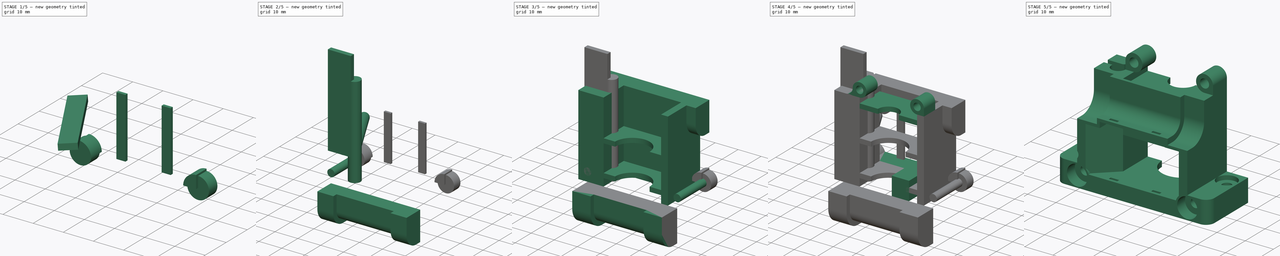
[diagram: build sequence overview — one tinted view per stage of 5, left to right]
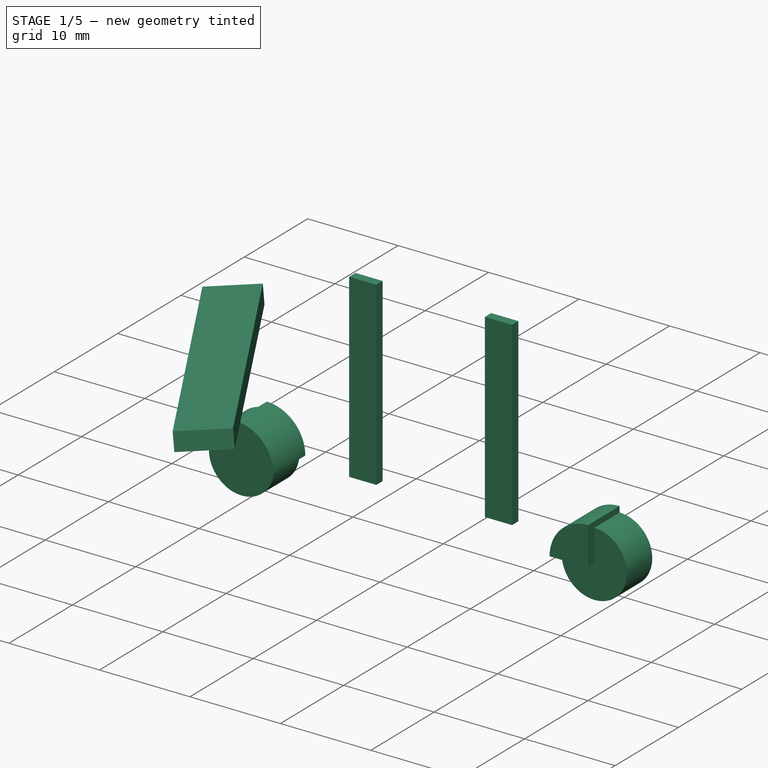
[diagram: stage 1 of 5 — iso view after this stage's code; geometry added in this stage tinted green]
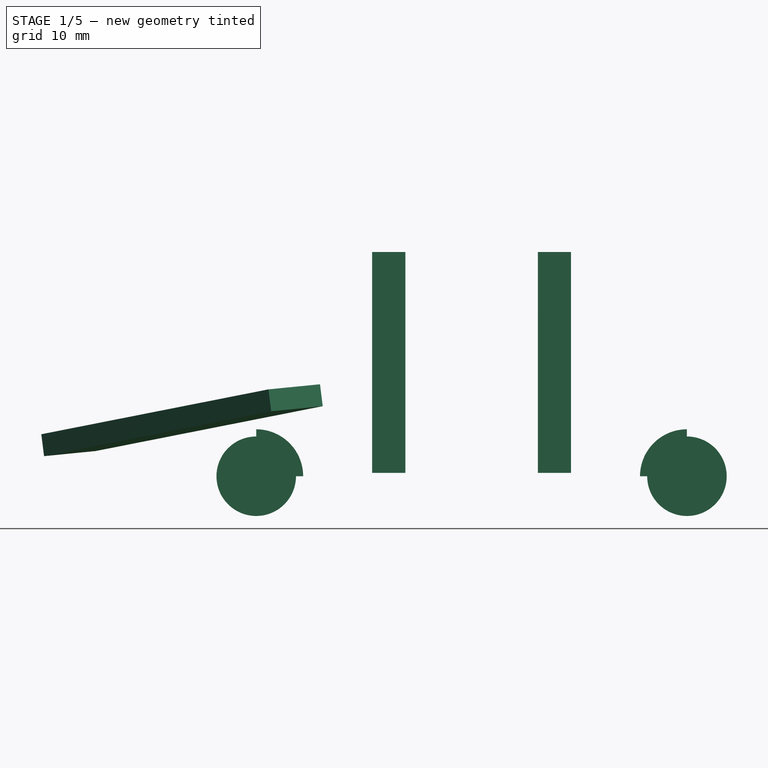
[diagram: stage 1 of 5 — front view after this stage's code; geometry added in this stage tinted green]
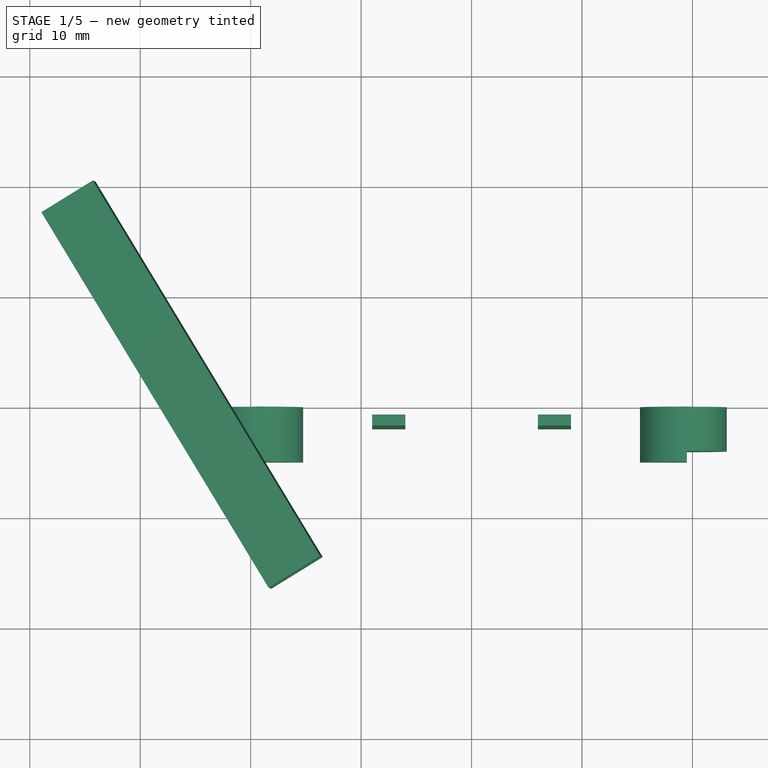
[diagram: stage 1 of 5 — top view after this stage's code; geometry added in this stage tinted green]
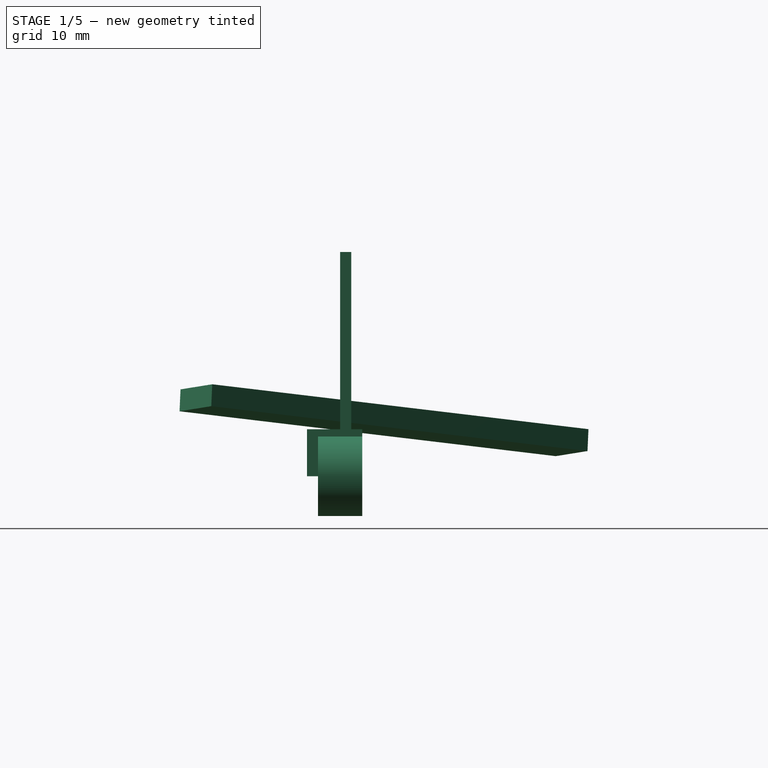
[diagram: stage 1 of 5 — right view after this stage's code; geometry added in this stage tinted green]
FCSTD DOCUMENT  (FreeCAD 0.18R15441 (Git))
Label: HotendClippingLeftHalf_E3DV6_Bowden
License: All rights reserved
LicenseURL: http://en.wikipedia.org/wiki/All_rights_reserved
objects: Sketcher::SketchObject×12, PartDesign::Pad×11, Part::Cylinder×10, PartDesign::Plane×8, Part::Box×5, Part::MultiFuse×4, Part::Cut×3, PartDesign::Body×3, Part::Fillet×2, Part::Mirroring×2, PartDesign::Pocket×1, PartDesign::Fillet×1, Part::FeaturePython×1, App::Part×1
note: 75 computed .brp shape members not serialized (recipe doc carries the construction recipe); baked Part::Feature solids carry a one-line shape summary decoded from their .brp

FEATURE [PartDesign::Body] Body002  label="RodCutBody"
  Group = -> [Sketch012,Pad010,DatumPlane006,DatumPlane007,Sketch011,Sketch013,Pad011,Pad009]
  Origin = -> Origin003
  Placement = pos=(0,20,35) rot=(0,0,1;0rad)
  Tip = -> Pad009
FEATURE [Part::Box] Box001  label="FanWireCutCube"
  AttacherType = Attacher::AttachEngine3D
  Height = 2
  Length = 5.5
  Placement = pos=(-18.1437,3.45834,9.88128) rot=(-0.135537,-0.195279,0.971337;0.562813rad)
  Width = 40
FEATURE [Part::Box] Box003  label="FanShroudClip1"
  AttacherType = Attacher::AttachEngine3D
  Height = 20
  Length = 3
  Placement = pos=(6,18,4.3) rot=(0,0,1;0rad)
  Width = 1
FEATURE [Part::Box] Box004  label="FanShroudClip2"
  AttacherType = Attacher::AttachEngine3D
  Height = 20
  Length = 3
  Placement = pos=(-9,18,4.3) rot=(0,0,1;0rad)
  Width = 1
FEATURE [Part::MultiFuse] Fusion003  label="FanShroudClipFusion"
  Shapes = -> [Box003,Box004]
FEATURE [Part::Cylinder] Cylinder010  label="ScrewTopCutCilinder1"
  Angle = 360
  AttacherType = Attacher::AttachEngine3D
  Height = 4
  Placement = pos=(19.5,16,4) rot=(-1,0,0;1.5708rad)
  Radius = 3.6
FEATURE [Part::Cylinder] Cylinder011  label="ScrewTopCutCilinder2"
  Angle = 360
  AttacherType = Attacher::AttachEngine3D
  Height = 4
  Placement = pos=(-19.5,16,4) rot=(-1,0,0;1.5708rad)
  Radius = 3.6
FEATURE [Part::Cylinder] Cylinder012  label="ScrewTopWallCilinder1"
  Angle = 90
  AttacherType = Attacher::AttachEngine3D
  Height = 5
  Placement = pos=(19.5,15,4) rot=(0,0.707107,0.707107;3.14159rad)
  Radius = 4.25
FEATURE [Part::Cylinder] Cylinder013  label="ScrewTopWallCilinder2"
  Angle = 90
  AttacherType = Attacher::AttachEngine3D
  Height = 5
  Placement = pos=(-19.5,15,4) rot=(0.57735,0.57735,0.57735;4.18879rad)
  Radius = 4.25
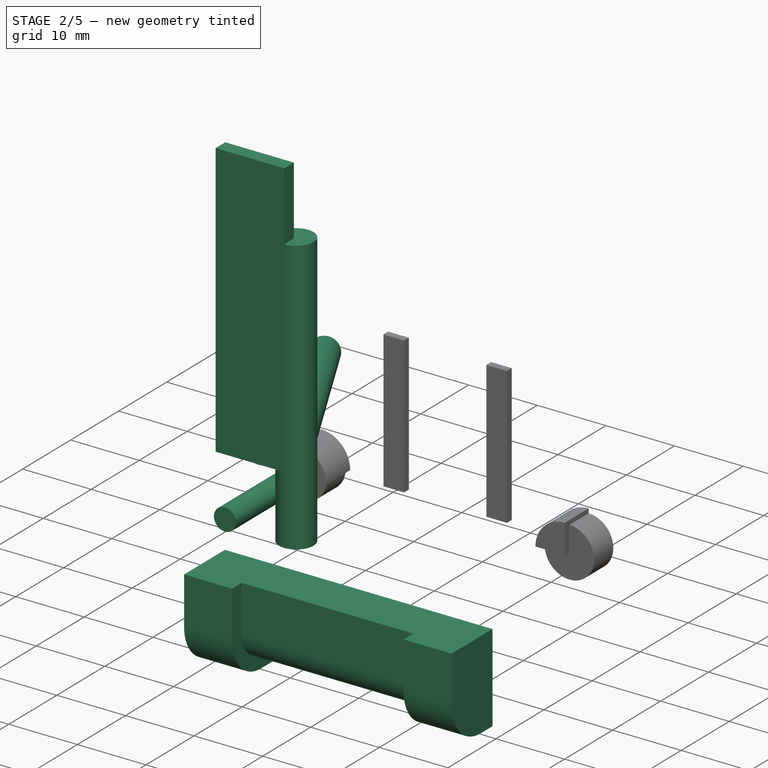
[diagram: stage 2 of 5 — iso view after this stage's code; geometry added in this stage tinted green]
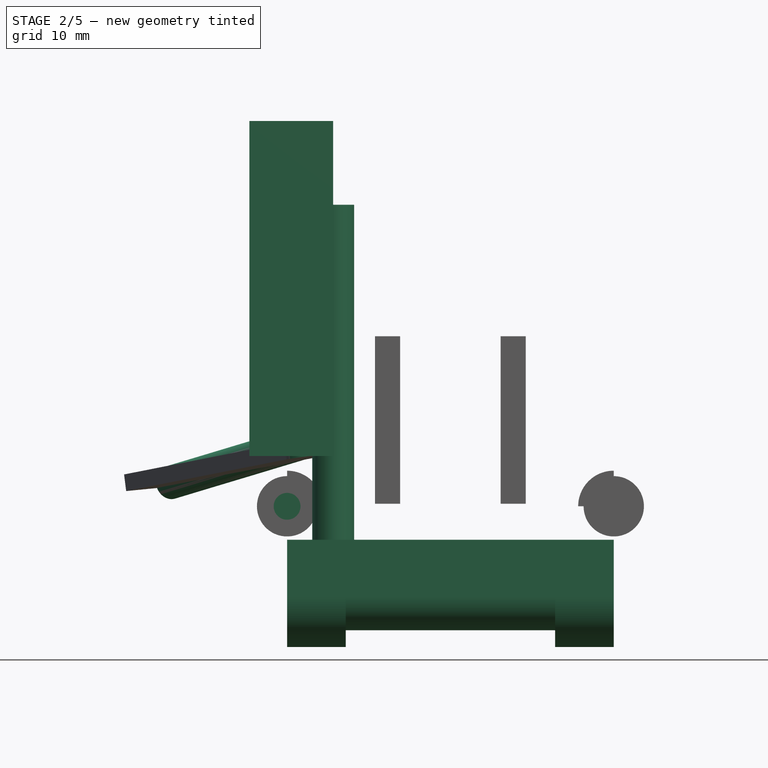
[diagram: stage 2 of 5 — front view after this stage's code; geometry added in this stage tinted green]
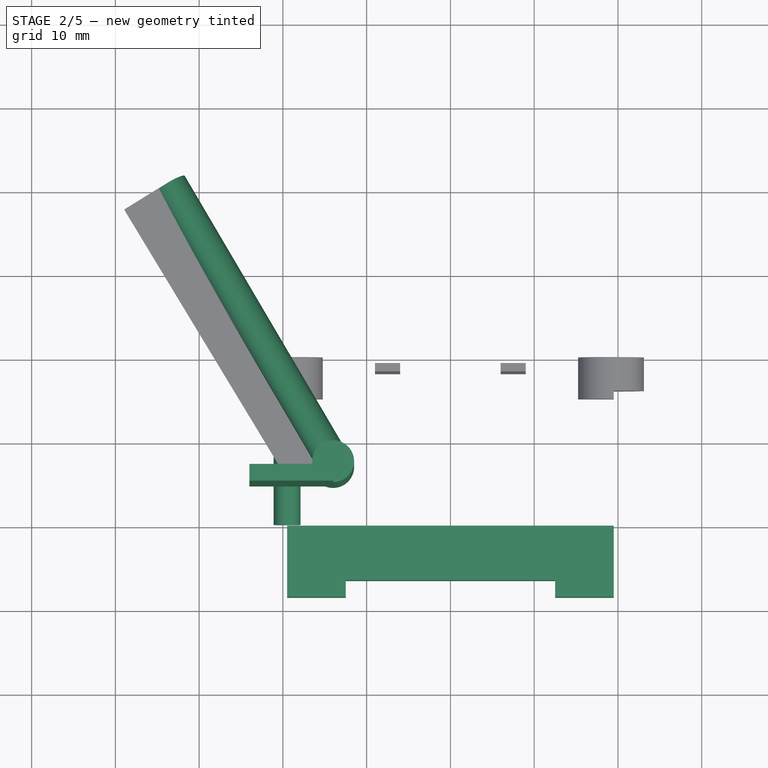
[diagram: stage 2 of 5 — top view after this stage's code; geometry added in this stage tinted green]
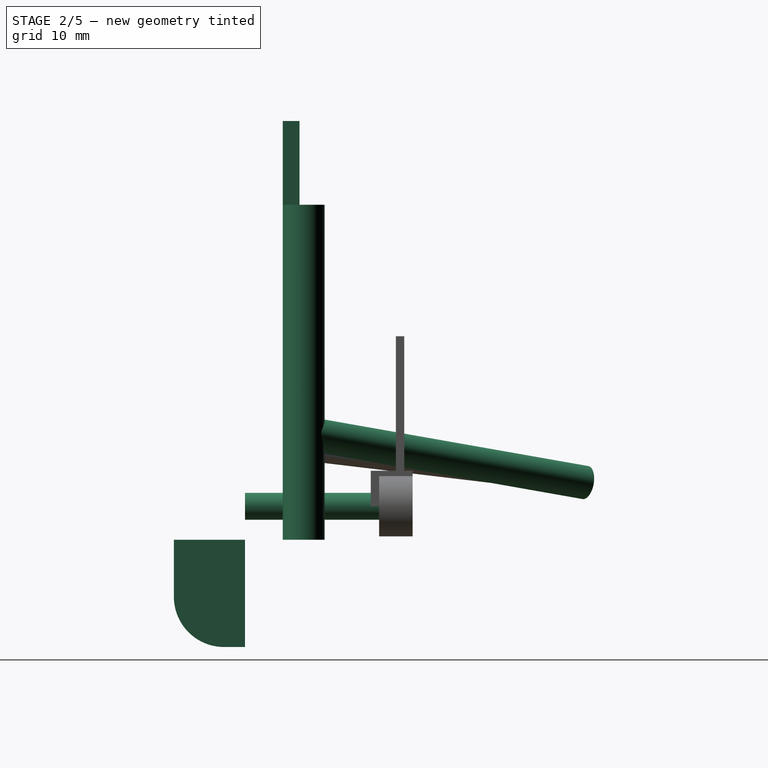
[diagram: stage 2 of 5 — right view after this stage's code; geometry added in this stage tinted green]
FEATURE [Part::Cylinder] Cylinder005  label="ClipCilinder3"
  Angle = 360
  AttacherType = Attacher::AttachEngine3D
  Height = 20
  Placement = pos=(-19.5,4e-15,4) rot=(-1,0,0;1.5708rad)
  Radius = 1.6
FEATURE [Part::Cylinder] Cylinder007  label="ThermistorWireCutCilinder"
  Angle = 360
  AttacherType = Attacher::AttachEngine3D
  Height = 40
  Placement = pos=(-14,7,0) rot=(0,0,1;0rad)
  Radius = 2.5
FEATURE [PartDesign::Body] Body001  label="RodWallBody"
  Group = -> [Sketch008,Pad006,DatumPlane004,DatumPlane005,Sketch009,Sketch010,Pad007,Pad008]
  Origin = -> Origin002
  Placement = pos=(0,20,35) rot=(0,0,1;0rad)
  Tip = -> Pad008
FEATURE [PartDesign::Plane] DatumPlane006  label="RodNutPlane1"
  AttachmentOffset = pos=(0,0,12.5) rot=(0,0,1;0rad)
  Length = 24
  MapMode = 5
  Placement = pos=(12.5,-2.8e-15,2.8e-15) rot=(0.57735,0.57735,0.57735;2.0944rad)
  ResizeMode = 0
  Support = -> [YZ_Plane003]
  Width = 24
FEATURE [Sketcher::SketchObject] Sketch012  label="RodCutSketch"
  MapMode = 5
  Placement = pos=(0,0,0) rot=(0.57735,0.57735,0.57735;2.0944rad)
  Support = -> [YZ_Plane003]
  sketch-geometry (6):
    g0: LineSegment StartX=0 StartY=0 StartZ=0 EndX=-6.5 EndY=0 EndZ=0
    g1: LineSegment StartX=0 StartY=0 StartZ=0 EndX=0 EndY=-10.8 EndZ=0
    g2: LineSegment StartX=-6.5 StartY=0 StartZ=0 EndX=-6.5 EndY=-6.8 EndZ=0
    g3: LineSegment StartX=0 StartY=-10.8 StartZ=0 EndX=-2.5 EndY=-10.8 EndZ=0
    g4: ArcOfCircle CenterX=-2.5 CenterY=-6.8 CenterZ=0 NormalX=0 NormalY=0 NormalZ=1 AngleXU=0 Radius=4 StartAngle=3.14159 EndAngle=4.71239
    g5: LineSegment [constr] StartX=-6.5 StartY=-6.8 StartZ=0 EndX=-2.5 EndY=-6.8 EndZ=0
  constraints (17):
    c: Coincident(g0,g-1)
    c: PointOnObject(g0,g-1)
    c: Coincident(g1,g0)
    c: PointOnObject(g1,g-2)
    c: Coincident(g2,g0)
    c: Vertical(g2)
    c: Coincident(g3,g1)
    c: Horizontal(g3)
    c: Coincident(g4,g2)
    c: Coincident(g4,g3)
    c: Coincident(g5,g2)
    c: Coincident(g5,g4)
    c: Horizontal(g5)
    c: Angle(g4) = 1.5708
    c: Distance(g2) = 6.8
    c: Distance(g0) = 6.5
    c: Distance(g1) = 10.8
FEATURE [Sketcher::SketchObject] Sketch011  label="RodNutCutSketch1"
  ExternalGeometry = -> [Sketch012]
  MapMode = 5
  Placement = pos=(12.5,-2.8e-15,2.8e-15) rot=(0.57735,0.57735,0.57735;2.0944rad)
  Support = -> [DatumPlane006]
  sketch-geometry (6):
    g0: ArcOfCircle CenterX=-2.5 CenterY=-6.8 CenterZ=0 NormalX=0 NormalY=0 NormalZ=1 AngleXU=0 Radius=6 StartAngle=3.14159 EndAngle=4.71239
    g1: LineSegment [constr] StartX=-8.5 StartY=-6.8 StartZ=0 EndX=-2.5 EndY=-6.8 EndZ=0
    g2: LineSegment StartX=-2.5 StartY=-12.8 StartZ=0 EndX=0 EndY=-12.8 EndZ=0
    g3: LineSegment StartX=-8.5 StartY=-6.8 StartZ=0 EndX=-8.5 EndY=0 EndZ=0
    g4: LineSegment StartX=-8.5 StartY=0 StartZ=0 EndX=0 EndY=0 EndZ=0
    g5: LineSegment StartX=0 StartY=0 StartZ=0 EndX=0 EndY=-12.8 EndZ=0
  constraints (16):
    c: Coincident(g0,g-3)
    c: Coincident(g1,g0)
    c: Coincident(g1,g0)
    c: Horizontal(g1)
    c: Angle(g0) = 1.5708
    c: Distance(g0,g-3) = 2
    c: Coincident(g2,g0)
    c: PointOnObject(g2,g-2)
    c: Horizontal(g2)
    c: Coincident(g3,g0)
    c: PointOnObject(g3,g-1)
    c: Vertical(g3)
    c: Coincident(g4,g3)
    c: Coincident(g4,g-1)
    c: Coincident(g5,g4)
    c: Coincident(g5,g2)
FEATURE [PartDesign::Plane] DatumPlane007  label="RodNutPlane2"
  AttachmentOffset = pos=(0,0,-12.5) rot=(0,0,1;0rad)
  Length = 24
  MapMode = 5
  Placement = pos=(-12.5,2.8e-15,-2.8e-15) rot=(0.57735,0.57735,0.57735;2.0944rad)
  ResizeMode = 0
  Support = -> [YZ_Plane003]
  Width = 24
FEATURE [Sketcher::SketchObject] Sketch013  label="RodNutCutSketch2"
  ExternalGeometry = -> [Sketch012]
  MapMode = 5
  Placement = pos=(-12.5,2.8e-15,-2.8e-15) rot=(0.57735,0.57735,0.57735;2.0944rad)
  Support = -> [DatumPlane007]
  sketch-geometry (6):
    g0: ArcOfCircle CenterX=-2.5 CenterY=-6.8 CenterZ=0 NormalX=0 NormalY=0 NormalZ=1 AngleXU=0 Radius=6 StartAngle=3.14159 EndAngle=4.71239
    g1: LineSegment [constr] StartX=-8.5 StartY=-6.8 StartZ=0 EndX=-2.5 EndY=-6.8 EndZ=0
    g2: LineSegment StartX=-2.5 StartY=-12.8 StartZ=0 EndX=0 EndY=-12.8 EndZ=0
    g3: LineSegment StartX=-8.5 StartY=-6.8 StartZ=0 EndX=-8.5 EndY=0 EndZ=0
    g4: LineSegment StartX=-8.5 StartY=0 StartZ=0 EndX=0 EndY=0 EndZ=0
    g5: LineSegment StartX=0 StartY=0 StartZ=0 EndX=0 EndY=-12.8 EndZ=0
  constraints (16):
    c: Coincident(g0,g-3)
    c: Coincident(g1,g0)
    c: Coincident(g1,g0)
    c: Horizontal(g1)
    c: Angle(g0) = 1.5708
    c: Distance(g0,g-3) = 2
    c: Coincident(g2,g0)
    c: PointOnObject(g2,g-2)
    c: Horizontal(g2)
    c: Coincident(g3,g0)
    c: PointOnObject(g3,g-1)
    c: Vertical(g3)
    c: Coincident(g4,g3)
    c: Coincident(g4,g-1)
    c: Coincident(g5,g4)
    c: Coincident(g5,g2)
FEATURE [PartDesign::Pad] Pad010  label="RodCutPad"
  Length = 12.5
  Length2 = 12.5
  Midplane = true
  Placement = pos=(0,0,0) rot=(0.57735,0.57735,0.57735;2.0944rad)
  Profile = -> Sketch012
  Type = 4
FEATURE [PartDesign::Pad] Pad011  label="RodNutCutPad1"
  BaseFeature = -> Pad010
  Length = 7
  Length2 = 100
  Placement = pos=(0,0,0) rot=(0.57735,0.57735,0.57735;2.0944rad)
  Profile = -> Sketch011
  Type = 0
FEATURE [PartDesign::Pad] Pad009  label="RodNutCutPad2"
  BaseFeature = -> Pad011
  Length = 7
  Length2 = 100
  Placement = pos=(0,0,0) rot=(0.57735,0.57735,0.57735;2.0944rad)
  Profile = -> Sketch013
  Reversed = true
  Type = 0
FEATURE [Part::Cylinder] Cylinder009  label="FanWireCutCilinder"
  Angle = 360
  AttacherType = Attacher::AttachEngine3D
  Height = 40
  Placement = pos=(-13.4443,6.51882,12.8506) rot=(0.671543,-0.425,-0.606964;3.74854rad)
  Radius = 2
FEATURE [Part::Box] Box002  label="ThermistorWireCutCube"
  AttacherType = Attacher::AttachEngine3D
  Height = 40
  Length = 10
  Placement = pos=(-24,4.5,10) rot=(0,0,1;0rad)
  Width = 2
FEATURE [Part::Fillet] Fillet002  label="FanWireCutFillet"
  Base = -> Box001
  Edges = 1 edges r=3: [Edge1]
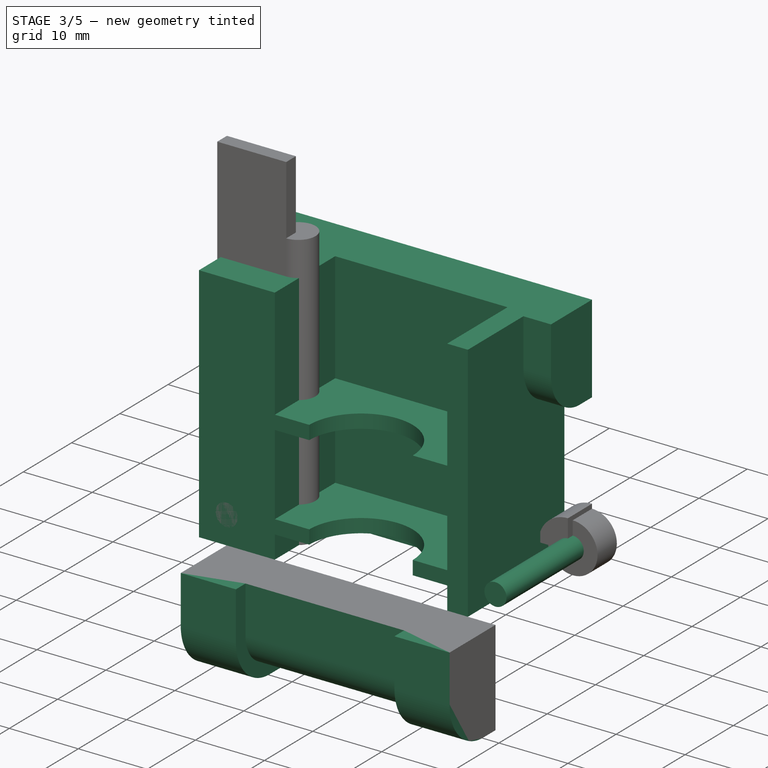
[diagram: stage 3 of 5 — iso view after this stage's code; geometry added in this stage tinted green]
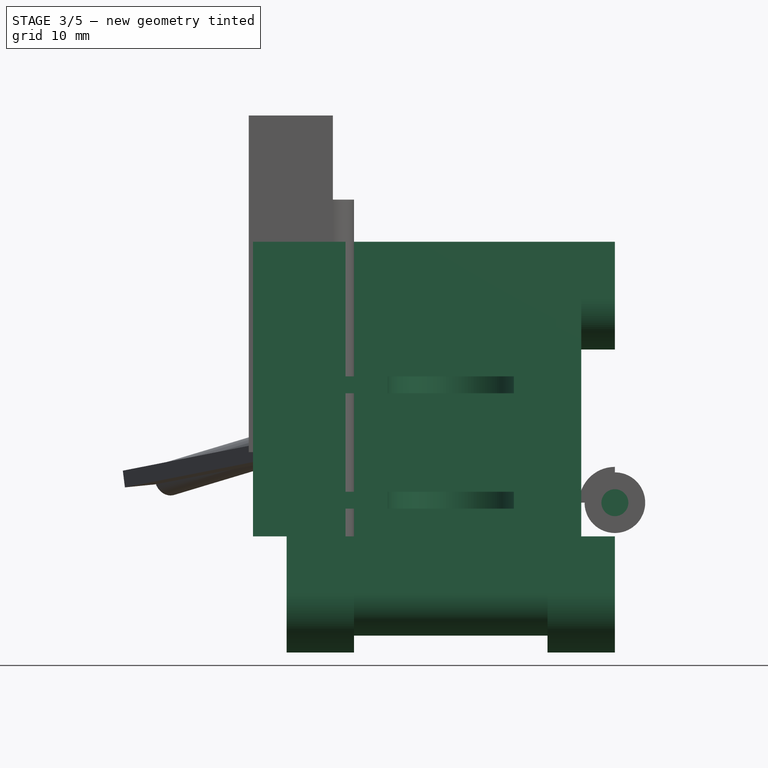
[diagram: stage 3 of 5 — front view after this stage's code; geometry added in this stage tinted green]
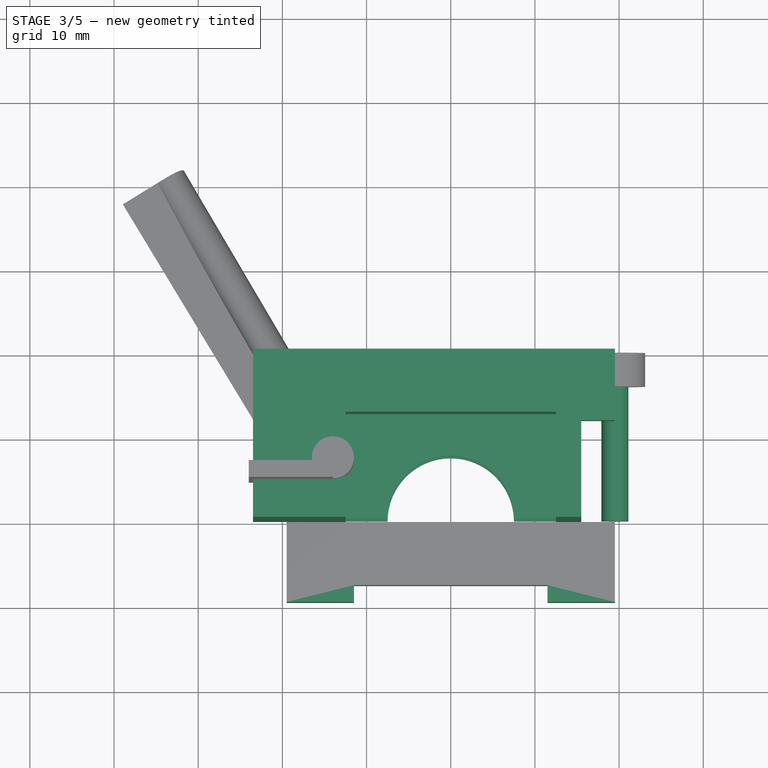
[diagram: stage 3 of 5 — top view after this stage's code; geometry added in this stage tinted green]
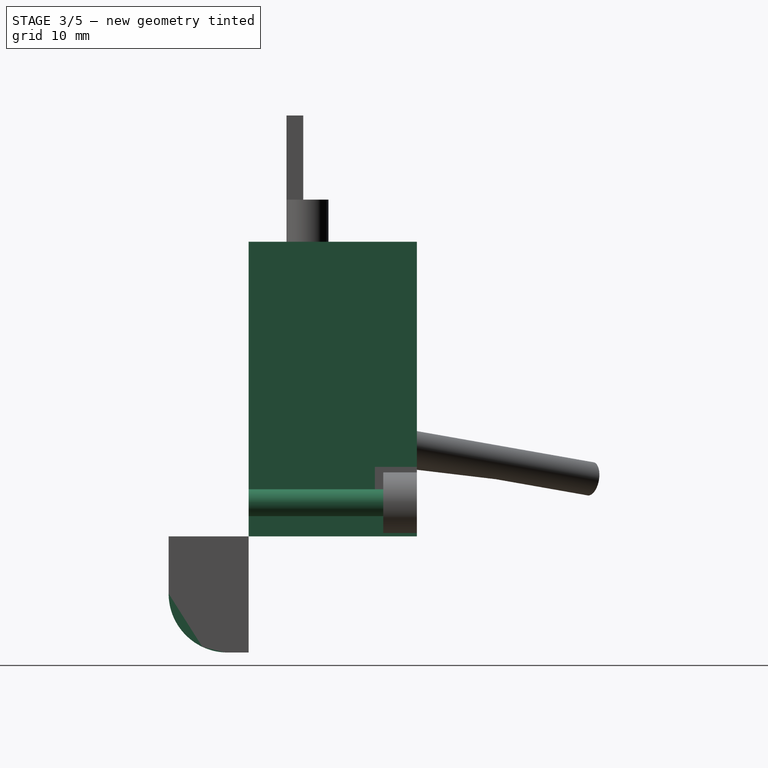
[diagram: stage 3 of 5 — right view after this stage's code; geometry added in this stage tinted green]
FEATURE [Sketcher::SketchObject] Sketch  label="BaseSketch"
  MapMode = 5
  Support = -> [XY_Plane001]
  sketch-geometry (11):
    g0: LineSegment StartX=-12.5 StartY=0 StartZ=0 EndX=-15.5 EndY=0 EndZ=0
    g1: LineSegment StartX=12.5 StartY=0 StartZ=0 EndX=15.5 EndY=0 EndZ=0
    g2: LineSegment [constr] StartX=-15.5 StartY=0 StartZ=0 EndX=-15.5 EndY=20 EndZ=0
    g3: LineSegment StartX=-15.5 StartY=20 StartZ=0 EndX=15.5 EndY=20 EndZ=0
    g4: LineSegment StartX=15.5 StartY=20 StartZ=0 EndX=15.5 EndY=0 EndZ=0
    g5: LineSegment StartX=-12.5 StartY=0 StartZ=0 EndX=-12.5 EndY=12.5 EndZ=0
    g6: LineSegment StartX=-12.5 StartY=12.5 StartZ=0 EndX=12.5 EndY=12.5 EndZ=0
    g7: LineSegment StartX=12.5 StartY=12.5 StartZ=0 EndX=12.5 EndY=0 EndZ=0
    g8: LineSegment StartX=-15.5 StartY=20 StartZ=0 EndX=-23.5 EndY=20 EndZ=0
    g9: LineSegment StartX=-23.5 StartY=20 StartZ=0 EndX=-23.5 EndY=0 EndZ=0
    g10: LineSegment StartX=-23.5 StartY=0 StartZ=0 EndX=-15.5 EndY=0 EndZ=0
  constraints (30):
    c: PointOnObject(g0,g-1)
    c: PointOnObject(g0,g-1)
    c: Coincident(g2,g0)
    c: Vertical(g2)
    c: Coincident(g3,g2)
    c: Horizontal(g3)
    c: Coincident(g4,g3)
    c: Coincident(g4,g1)
    c: Vertical(g4)
    c: Symmetric(g1,g0,g-2)
    c: Distance(g4) = 20
    c: Distance(g3) = 31
    c: Symmetric(g1,g0,g-2)
    c: Coincident(g5,g0)
    c: Vertical(g5)
    c: Coincident(g6,g5)
    c: Horizontal(g6)
    c: Coincident(g7,g6)
    c: Coincident(g7,g1)
    c: Vertical(g7)
    c: Distance(g6) = 25
    c: Distance(g7) = 12.5
    c: Coincident(g8,g2)
    c: Horizontal(g8)
    c: Coincident(g9,g8)
    c: Vertical(g9)
    c: Coincident(g10,g9)
    c: Coincident(g10,g0)
    c: Horizontal(g10)
    c: Distance(g8) = 8
FEATURE [PartDesign::Pad] Pad  label="BasePad"
  Length = 35
  Length2 = 100
  Profile = -> Sketch
  Type = 0
FEATURE [PartDesign::Plane] DatumPlane  label="Clip1Plane"
  AttachmentOffset = pos=(0,0,3.3) rot=(0,0,1;0rad)
  Length = 45.8411
  MapMode = 5
  Placement = pos=(0,0,3.3) rot=(0,0,1;0rad)
  ResizeMode = 0
  Support = -> [XY_Plane001]
  Width = 36.8411
FEATURE [Sketcher::SketchObject] Sketch001  label="Clip1Sketch"
  ExternalGeometry = -> [Sketch]
  MapMode = 5
  Placement = pos=(0,0,3.3) rot=(0,0,1;0rad)
  Support = -> [DatumPlane]
  sketch-geometry (6):
    g0: ArcOfCircle CenterX=0 CenterY=0 CenterZ=0 NormalX=0 NormalY=0 NormalZ=1 AngleXU=0 Radius=7.5 StartAngle=0 EndAngle=3.14159
    g1: LineSegment StartX=-7.5 StartY=0 StartZ=0 EndX=-12.5 EndY=0 EndZ=0
    g2: LineSegment StartX=-12.5 StartY=0 StartZ=0 EndX=-12.5 EndY=12.5 EndZ=0
    g3: LineSegment StartX=-12.5 StartY=12.5 StartZ=0 EndX=12.5 EndY=12.5 EndZ=0
    g4: LineSegment StartX=12.5 StartY=12.5 StartZ=0 EndX=12.5 EndY=0 EndZ=0
    g5: LineSegment StartX=12.5 StartY=0 StartZ=0 EndX=7.5 EndY=0 EndZ=0
  constraints (14):
    c: Radius(g0) = 7.5
    c: Coincident(g0,g-1)
    c: PointOnObject(g0,g-1)
    c: PointOnObject(g0,g-1)
    c: Coincident(g1,g0)
    c: Coincident(g1,g-3)
    c: Coincident(g2,g1)
    c: Coincident(g2,g-4)
    c: Coincident(g3,g2)
    c: Coincident(g3,g-5)
    c: Coincident(g4,g3)
    c: Coincident(g4,g-5)
    c: Coincident(g5,g4)
    c: Coincident(g5,g0)
FEATURE [PartDesign::Pad] Pad001  label="Clip1Pad"
  BaseFeature = -> Pad
  Length = 2
  Length2 = 100
  Profile = -> Sketch001
  Type = 0
FEATURE [PartDesign::Plane] DatumPlane001  label="Clip2Plane"
  AttachmentOffset = pos=(0,0,17) rot=(0,0,1;0rad)
  Length = 45.8411
  MapMode = 5
  Placement = pos=(0,0,17) rot=(0,0,1;0rad)
  ResizeMode = 0
  Support = -> [XY_Plane001]
  Width = 36.8411
FEATURE [Sketcher::SketchObject] Sketch002  label="Clip2Sketch"
  ExternalGeometry = -> [Sketch001]
  MapMode = 5
  Placement = pos=(0,0,17) rot=(0,0,1;0rad)
  Support = -> [DatumPlane001]
  sketch-geometry (6):
    g0: ArcOfCircle CenterX=0 CenterY=0 CenterZ=0 NormalX=0 NormalY=0 NormalZ=1 AngleXU=0 Radius=7.5 StartAngle=-1.0001e-12 EndAngle=3.14159
    g1: LineSegment StartX=-7.5 StartY=-5e-12 StartZ=0 EndX=-12.5 EndY=0 EndZ=0
    g2: LineSegment StartX=-12.5 StartY=0 StartZ=0 EndX=-12.5 EndY=12.5 EndZ=0
    g3: LineSegment StartX=-12.5 StartY=12.5 StartZ=0 EndX=12.5 EndY=12.5 EndZ=0
    g4: LineSegment StartX=12.5 StartY=12.5 StartZ=0 EndX=12.5 EndY=0 EndZ=0
    g5: LineSegment StartX=12.5 StartY=0 StartZ=0 EndX=7.5 EndY=-5e-12 EndZ=0
  constraints (13):
    c: Coincident(g0,g-6)
    c: Coincident(g0,g-6)
    c: Coincident(g0,g-1)
    c: Coincident(g1,g0)
    c: Coincident(g1,g-5)
    c: Coincident(g2,g1)
    c: Coincident(g2,g-5)
    c: Coincident(g3,g2)
    c: Coincident(g3,g-4)
    c: Coincident(g4,g3)
    c: Coincident(g4,g-4)
    c: Coincident(g5,g4)
    c: Coincident(g5,g0)
FEATURE [PartDesign::Pad] Pad002  label="Clip2Pad"
  BaseFeature = -> Pad001
  Length = 2
  Length2 = 100
  Profile = -> Sketch002
  Type = 0
FEATURE [Part::Cylinder] Cylinder003  label="ClipCilinder1"
  Angle = 360
  AttacherType = Attacher::AttachEngine3D
  Height = 20
  Placement = pos=(19.5,4e-15,4) rot=(-1,0,0;1.5708rad)
  Radius = 1.6
FEATURE [PartDesign::Body] Body  label="RadiatorClipBody"
  Group = -> [Sketch,Pad,DatumPlane,Sketch001,Pad001,DatumPlane001,Sketch002,Pad002,DatumPlane002,Sketch003,Pad003,DatumPlane003,Sketch004,Pocket,Sketch007,Pad005,Fillet]
  Origin = -> Origin001
  Placement = pos=(4,0,0) rot=(0,0,1;0rad)
  Tip = -> Fillet
FEATURE [PartDesign::Pad] Pad006  label="RodWallPad"
  Length = 11.5
  Length2 = 11.5
  Midplane = true
  Placement = pos=(0,0,0) rot=(0.57735,0.57735,0.57735;2.0944rad)
  Profile = -> Sketch008
  Type = 4
FEATURE [PartDesign::Plane] DatumPlane004  label="RodNutWallPlane1"
  AttachmentOffset = pos=(0,0,11.5) rot=(0,0,1;0rad)
  Length = 24.3635
  MapMode = 5
  Placement = pos=(11.5,-2.6e-15,2.6e-15) rot=(0.57735,0.57735,0.57735;2.0944rad)
  ResizeMode = 0
  Support = -> [YZ_Plane002]
  Width = 28.1635
FEATURE [PartDesign::Plane] DatumPlane005  label="RodNutWallPlane2"
  AttachmentOffset = pos=(0,0,-11.5) rot=(0,0,1;0rad)
  Length = 24.3635
  MapMode = 5
  Placement = pos=(-11.5,2.6e-15,-2.6e-15) rot=(0.57735,0.57735,0.57735;2.0944rad)
  ResizeMode = 0
  Support = -> [YZ_Plane002]
  Width = 28.1635
FEATURE [Sketcher::SketchObject] Sketch009  label="RodNutWallSketch1"
  ExternalGeometry = -> [Sketch008]
  MapMode = 5
  Placement = pos=(11.5,-2.6e-15,2.6e-15) rot=(0.57735,0.57735,0.57735;2.0944rad)
  Support = -> [DatumPlane004]
  sketch-geometry (6):
    g0: ArcOfCircle CenterX=-2.5 CenterY=-6.8 CenterZ=0 NormalX=0 NormalY=0 NormalZ=1 AngleXU=0 Radius=7 StartAngle=3.14159 EndAngle=4.71239
    g1: LineSegment [constr] StartX=-9.5 StartY=-6.8 StartZ=0 EndX=-2.5 EndY=-6.8 EndZ=0
    g2: LineSegment StartX=-2.5 StartY=-13.8 StartZ=0 EndX=0 EndY=-13.8 EndZ=0
    g3: LineSegment StartX=-9.5 StartY=-6.8 StartZ=0 EndX=-9.5 EndY=0 EndZ=0
    g4: LineSegment StartX=-9.5 StartY=0 StartZ=0 EndX=0 EndY=0 EndZ=0
    g5: LineSegment StartX=0 StartY=0 StartZ=0 EndX=0 EndY=-13.8 EndZ=0
  constraints (16):
    c: Coincident(g0,g-3)
    c: Coincident(g1,g0)
    c: Coincident(g1,g0)
    c: Horizontal(g1)
    c: Angle(g0) = 1.5708
    c: Distance(g0,g-3) = 2
    c: Coincident(g2,g0)
    c: PointOnObject(g2,g-2)
    c: Horizontal(g2)
    c: Coincident(g3,g0)
    c: PointOnObject(g3,g-1)
    c: Vertical(g3)
    c: Coincident(g4,g3)
    c: Coincident(g4,g-1)
    c: Coincident(g5,g4)
    c: Coincident(g5,g2)
FEATURE [Sketcher::SketchObject] Sketch010  label="RodNutWallSketch2"
  ExternalGeometry = -> [Sketch008]
  MapMode = 5
  Placement = pos=(-11.5,2.6e-15,-2.6e-15) rot=(0.57735,0.57735,0.57735;2.0944rad)
  Support = -> [DatumPlane005]
  sketch-geometry (6):
    g0: ArcOfCircle CenterX=-2.5 CenterY=-6.8 CenterZ=0 NormalX=0 NormalY=0 NormalZ=1 AngleXU=0 Radius=7 StartAngle=3.14159 EndAngle=4.71239
    g1: LineSegment [constr] StartX=-9.5 StartY=-6.8 StartZ=0 EndX=-2.5 EndY=-6.8 EndZ=0
    g2: LineSegment StartX=-2.5 StartY=-13.8 StartZ=0 EndX=0 EndY=-13.8 EndZ=0
    g3: LineSegment StartX=-9.5 StartY=-6.8 StartZ=0 EndX=-9.5 EndY=0 EndZ=0
    g4: LineSegment StartX=-9.5 StartY=0 StartZ=0 EndX=0 EndY=0 EndZ=0
    g5: LineSegment StartX=0 StartY=0 StartZ=0 EndX=0 EndY=-13.8 EndZ=0
  constraints (16):
    c: Coincident(g0,g-3)
    c: Coincident(g1,g0)
    c: Coincident(g1,g0)
    c: Horizontal(g1)
    c: Angle(g0) = 1.5708
    c: Distance(g0,g-3) = 2
    c: Coincident(g2,g0)
    c: PointOnObject(g2,g-2)
    c: Horizontal(g2)
    c: Coincident(g3,g0)
    c: PointOnObject(g3,g-1)
    c: Vertical(g3)
    c: Coincident(g4,g3)
    c: Coincident(g4,g-1)
    c: Coincident(g5,g4)
    c: Coincident(g5,g2)
FEATURE [PartDesign::Pad] Pad007  label="RodNutWallPad1"
  BaseFeature = -> Pad006
  Length = 8
  Length2 = 100
  Placement = pos=(0,0,0) rot=(0.57735,0.57735,0.57735;2.0944rad)
  Profile = -> Sketch009
  Type = 0
FEATURE [PartDesign::Pad] Pad008  label="RodNutWallPad2"
  BaseFeature = -> Pad007
  Length = 8
  Length2 = 100
  Placement = pos=(0,0,0) rot=(0.57735,0.57735,0.57735;2.0944rad)
  Profile = -> Sketch010
  Reversed = true
  Type = 0
FEATURE [Part::MultiFuse] Fusion002  label="CaseCutsFusion1"
  Shapes = -> [Cylinder003,Cylinder005,Cylinder007,Body002,Cylinder009,Box002,Fillet002,Cylinder010,Cylinder011]
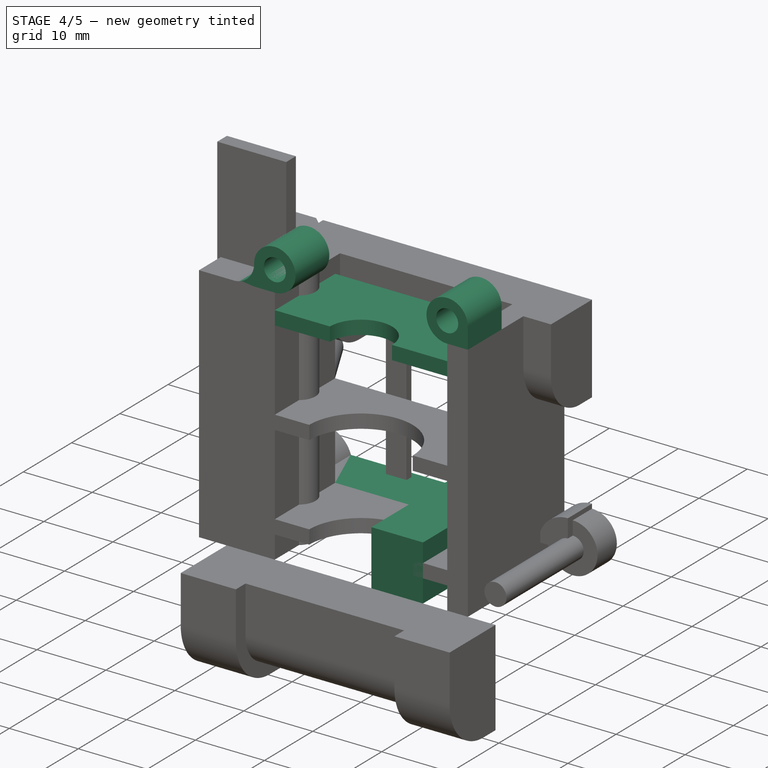
[diagram: stage 4 of 5 — iso view after this stage's code; geometry added in this stage tinted green]
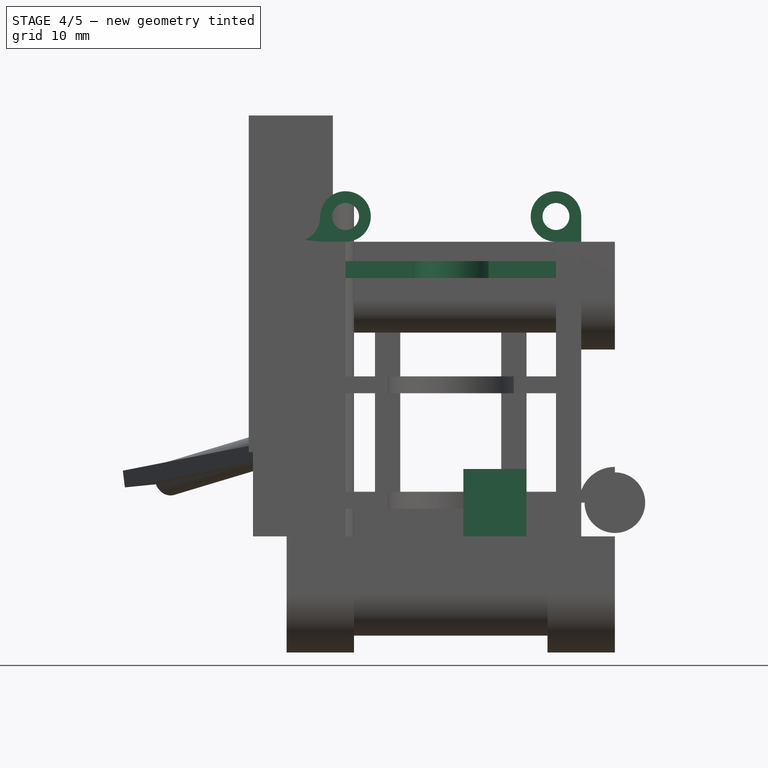
[diagram: stage 4 of 5 — front view after this stage's code; geometry added in this stage tinted green]
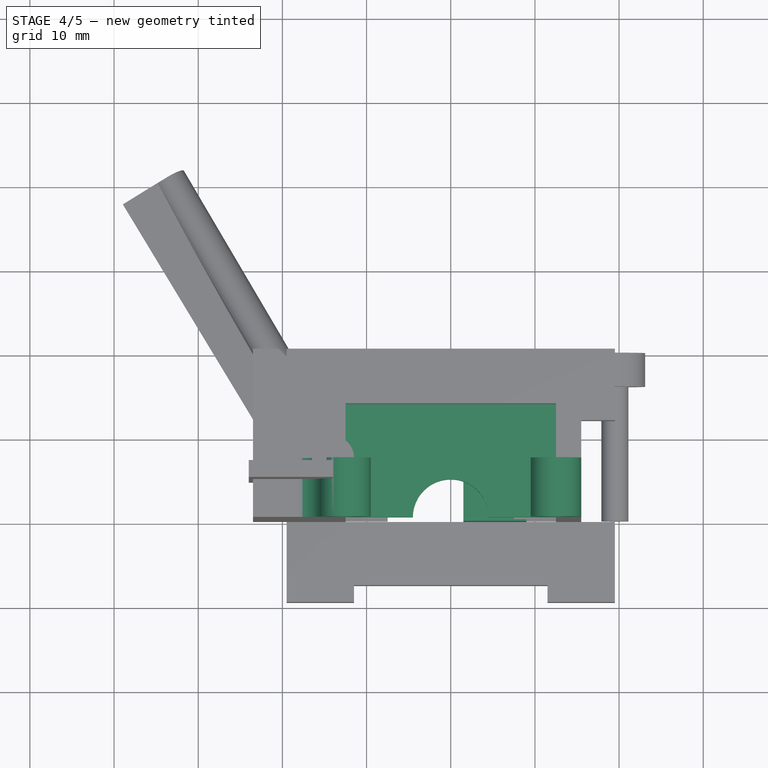
[diagram: stage 4 of 5 — top view after this stage's code; geometry added in this stage tinted green]
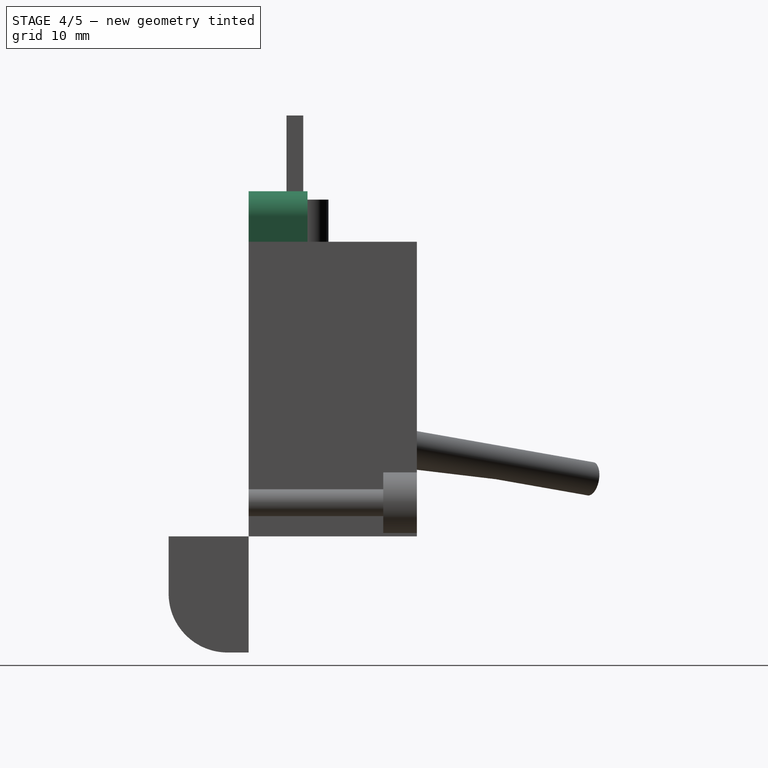
[diagram: stage 4 of 5 — right view after this stage's code; geometry added in this stage tinted green]
FEATURE [PartDesign::Plane] DatumPlane002  label="Clip3Plane"
  AttachmentOffset = pos=(0,0,30.7) rot=(0,0,1;0rad)
  Length = 45.8411
  MapMode = 5
  Placement = pos=(0,0,30.7) rot=(0,0,1;0rad)
  ResizeMode = 0
  Support = -> [XY_Plane001]
  Width = 36.8411
FEATURE [Sketcher::SketchObject] Sketch003  label="Clip3Sketch"
  ExternalGeometry = -> [Sketch001]
  MapMode = 5
  Placement = pos=(0,0,30.7) rot=(0,0,1;0rad)
  Support = -> [DatumPlane002]
  sketch-geometry (6):
    g0: ArcOfCircle CenterX=0 CenterY=0 CenterZ=0 NormalX=0 NormalY=0 NormalZ=1 AngleXU=0 Radius=4.5 StartAngle=0 EndAngle=3.14159
    g1: LineSegment StartX=-4.5 StartY=0 StartZ=0 EndX=-12.5 EndY=0 EndZ=0
    g2: LineSegment StartX=-12.5 StartY=0 StartZ=0 EndX=-12.5 EndY=12.5 EndZ=0
    g3: LineSegment StartX=-12.5 StartY=12.5 StartZ=0 EndX=12.5 EndY=12.5 EndZ=0
    g4: LineSegment StartX=12.5 StartY=12.5 StartZ=0 EndX=12.5 EndY=0 EndZ=0
    g5: LineSegment StartX=12.5 StartY=0 StartZ=0 EndX=4.5 EndY=0 EndZ=0
  constraints (14):
    c: Radius(g0) = 4.5
    c: Coincident(g0,g-1)
    c: PointOnObject(g0,g-1)
    c: PointOnObject(g0,g-1)
    c: Coincident(g1,g0)
    c: Coincident(g1,g-3)
    c: Coincident(g2,g1)
    c: Coincident(g2,g-4)
    c: Coincident(g3,g2)
    c: Coincident(g3,g-5)
    c: Coincident(g4,g3)
    c: Coincident(g4,g-5)
    c: Coincident(g5,g4)
    c: Coincident(g5,g0)
FEATURE [PartDesign::Pad] Pad003  label="Clip3Pad"
  BaseFeature = -> Pad002
  Length = 2
  Length2 = 100
  Profile = -> Sketch003
  Type = 0
FEATURE [PartDesign::Plane] DatumPlane003  label="CutPlane"
  AttachmentOffset = pos=(0,0,5.3) rot=(0,0,1;0rad)
  Length = 45.8411
  MapMode = 5
  Placement = pos=(0,0,5.3) rot=(0,0,1;0rad)
  ResizeMode = 0
  Support = -> [XY_Plane001]
  Width = 36.8411
FEATURE [Part::Box] Box  label="ClipCube"
  AttacherType = Attacher::AttachEngine3D
  Height = 8
  Length = 7.5
  Placement = pos=(1.5,0,0) rot=(0,0,1;0rad)
  Width = 20
FEATURE [Part::Cylinder] Cylinder  label="ClipCilinder"
  Angle = 360
  AttacherType = Attacher::AttachEngine3D
  Height = 8
  Placement = pos=(5,5,0) rot=(0,0,1;0rad)
  Radius = 1.6
FEATURE [Sketcher::SketchObject] Sketch004  label="CutSketch"
  ExternalGeometry = -> [Sketch]
  MapMode = 5
  Placement = pos=(0,0,5.3) rot=(0,0,1;0rad)
  Support = -> [DatumPlane003]
  sketch-geometry (6):
    g0: LineSegment StartX=12.5 StartY=12.5 StartZ=0 EndX=12.5 EndY=20 EndZ=0
    g1: LineSegment StartX=12.5 StartY=20 StartZ=0 EndX=-20.5 EndY=20 EndZ=0
    g2: LineSegment [constr] StartX=-20.5 StartY=20 StartZ=0 EndX=-23.5 EndY=20 EndZ=0
    g3: LineSegment [constr] StartX=12.5 StartY=20 StartZ=0 EndX=15.5 EndY=20 EndZ=0
    g4: LineSegment StartX=12.5 StartY=12.5 StartZ=0 EndX=-12.5 EndY=12.5 EndZ=0
    g5: LineSegment StartX=-12.5 StartY=12.5 StartZ=0 EndX=-20.5 EndY=20 EndZ=0
  constraints (14):
    c: Coincident(g0,g-3)
    c: PointOnObject(g0,g-4)
    c: Vertical(g0)
    c: Coincident(g1,g0)
    c: PointOnObject(g1,g-5)
    c: Coincident(g2,g1)
    c: Coincident(g3,g0)
    c: Coincident(g3,g-4)
    c: Coincident(g2,g-5)
    c: Equal(g2,g3)
    c: Coincident(g4,g0)
    c: Coincident(g4,g-3)
    c: Coincident(g5,g4)
    c: Coincident(g5,g1)
FEATURE [PartDesign::Pocket] Pocket  label="CutPocket"
  BaseFeature = -> Pad003
  Length = 5
  Length2 = 100
  Profile = -> Sketch004
  Reversed = true
  Type = 1
FEATURE [Sketcher::SketchObject] Sketch007  label="StructuralClipSketch"
  MapMode = 5
  Placement = pos=(0,0,0) rot=(1,0,0;1.5708rad)
  Support = -> [XZ_Plane]
  sketch-geometry (10):
    g0: LineSegment StartX=-15.5 StartY=41 StartZ=0 EndX=-9.5 EndY=41 EndZ=0
    g1: LineSegment StartX=-9.5 StartY=41 StartZ=0 EndX=-9.5 EndY=35 EndZ=0
    g2: LineSegment StartX=-9.5 StartY=35 StartZ=0 EndX=-15.5 EndY=35 EndZ=0
    g3: LineSegment StartX=-15.5 StartY=35 StartZ=0 EndX=-15.5 EndY=41 EndZ=0
    g4: LineSegment StartX=15.5 StartY=41 StartZ=0 EndX=9.5 EndY=41 EndZ=0
    g5: LineSegment StartX=9.5 StartY=41 StartZ=0 EndX=9.5 EndY=35 EndZ=0
    g6: LineSegment StartX=9.5 StartY=35 StartZ=0 EndX=15.5 EndY=35 EndZ=0
    g7: LineSegment StartX=15.5 StartY=35 StartZ=0 EndX=15.5 EndY=41 EndZ=0
    g8: Circle CenterX=12.5 CenterY=38 CenterZ=0 NormalX=0 NormalY=0 NormalZ=1 AngleXU=0 Radius=1.6
    g9: Circle CenterX=-12.5 CenterY=38 CenterZ=0 NormalX=0 NormalY=0 NormalZ=1 AngleXU=0 Radius=1.6
  constraints (28):
    c: Coincident(g0,g1)
    c: Coincident(g1,g2)
    c: Coincident(g2,g3)
    c: Coincident(g3,g0)
    c: Horizontal(g0)
    c: Horizontal(g2)
    c: Vertical(g1)
    c: Vertical(g3)
    c: Coincident(g4,g5)
    c: Coincident(g5,g6)
    c: Coincident(g6,g7)
    c: Coincident(g7,g4)
    c: Horizontal(g4)
    c: Horizontal(g6)
    c: Vertical(g5)
    c: Vertical(g7)
    c: Symmetric(g1,g5,g-2)
    c: Equal(g2,g6)
    c: Equal(g1,g5)
    c: DistanceY(g-1,g1) = 35
    c: DistanceX(g-2,g5) = 9.5
    c: Distance(g4) = 6
    c: Symmetric(g8,g9,g-2)
    c: Equal(g8,g9)
    c: Radius(g9) = 1.6
    c: Distance(g3) = 6
    c: Distance(g9,g2) = 3
    c: Distance(g9,g3) = 3
FEATURE [PartDesign::Pad] Pad005  label="StructuralClipPad"
  BaseFeature = -> Pocket
  Length = 7
  Length2 = 100
  Profile = -> Sketch007
  Reversed = true
  Type = 0
FEATURE [Part::Cylinder] Cylinder008  label="ScrewTopCilinder"
  Angle = 360
  AttacherType = Attacher::AttachEngine3D
  Height = 1.5
  Placement = pos=(5,5,6.5) rot=(0,0,1;0rad)
  Radius = 3.5
FEATURE [Part::MultiFuse] Fusion  label="ClipCilindersFusion"
  Shapes = -> [Cylinder,Cylinder008]
FEATURE [Sketcher::SketchObject] Sketch008  label="RodWallSketch"
  MapMode = 5
  Placement = pos=(0,0,0) rot=(0.57735,0.57735,0.57735;2.0944rad)
  Support = -> [YZ_Plane002]
  sketch-geometry (6):
    g0: LineSegment StartX=0 StartY=0 StartZ=0 EndX=-7.5 EndY=0 EndZ=0
    g1: LineSegment StartX=0 StartY=0 StartZ=0 EndX=0 EndY=-11.8 EndZ=0
    g2: LineSegment StartX=-7.5 StartY=0 StartZ=0 EndX=-7.5 EndY=-6.8 EndZ=0
    g3: LineSegment StartX=0 StartY=-11.8 StartZ=0 EndX=-2.5 EndY=-11.8 EndZ=0
    g4: ArcOfCircle CenterX=-2.5 CenterY=-6.8 CenterZ=0 NormalX=0 NormalY=0 NormalZ=1 AngleXU=0 Radius=5 StartAngle=3.14159 EndAngle=4.71239
    g5: LineSegment [constr] StartX=-7.5 StartY=-6.8 StartZ=0 EndX=-2.5 EndY=-6.8 EndZ=0
  constraints (17):
    c: Coincident(g0,g-1)
    c: PointOnObject(g0,g-1)
    c: Coincident(g1,g0)
    c: PointOnObject(g1,g-2)
    c: Coincident(g2,g0)
    c: Vertical(g2)
    c: Coincident(g3,g1)
    c: Horizontal(g3)
    c: Coincident(g4,g2)
    c: Coincident(g4,g3)
    c: Coincident(g5,g2)
    c: Coincident(g5,g4)
    c: Horizontal(g5)
    c: Angle(g4) = 1.5708
    c: Distance(g2) = 6.8
    c: Distance(g0) = 7.5
    c: Distance(g1) = 11.8
FEATURE [PartDesign::Fillet] Fillet  label="StructuralClipFillet"
  Base = -> Pad005 [Edge93,Edge133,Edge134,Edge121,Edge123,Edge122,Edge78]
  BaseFeature = -> Pad005
  Radius = 2.99
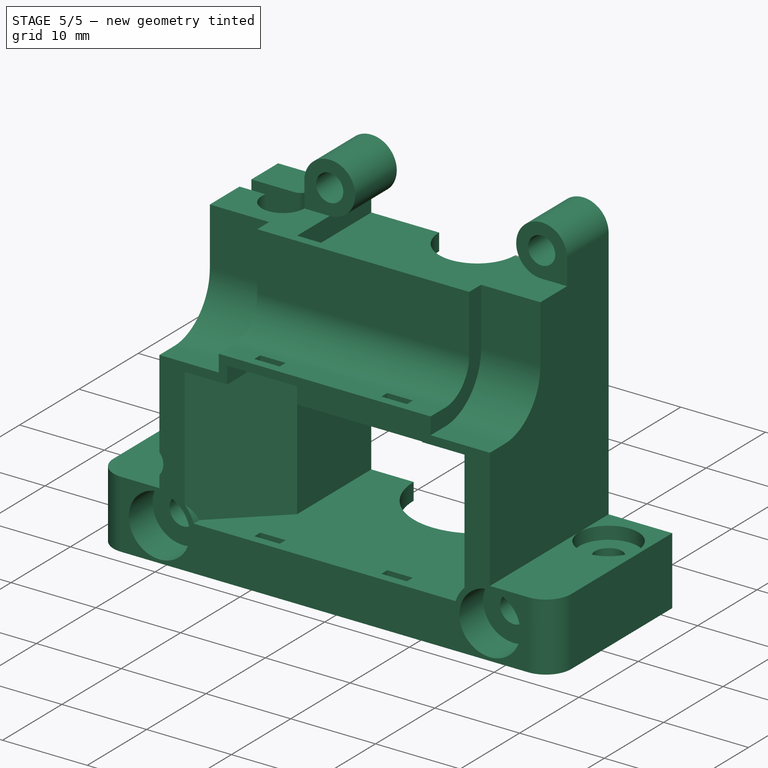
[diagram: stage 5 of 5 — iso view after this stage's code; geometry added in this stage tinted green]
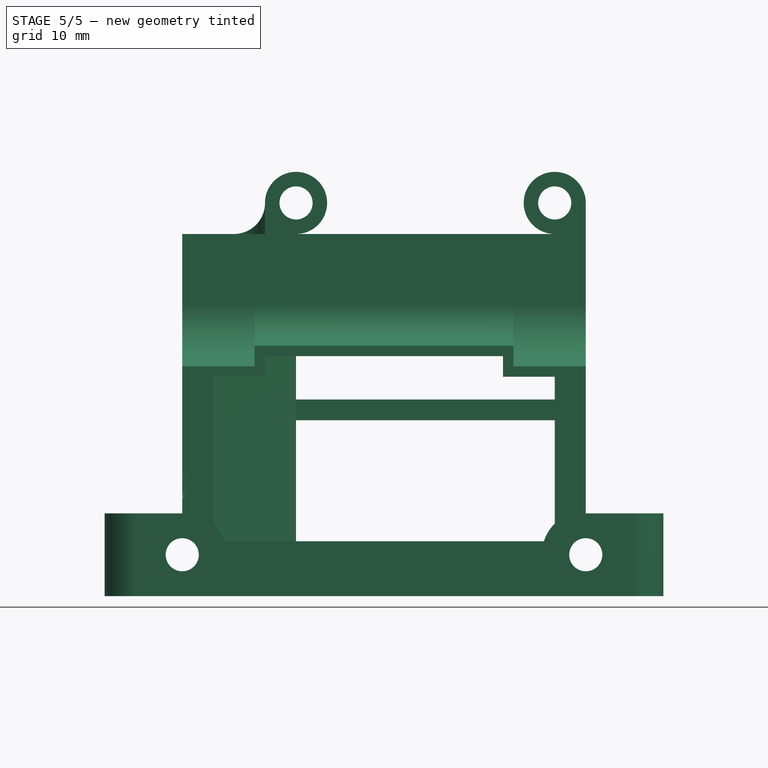
[diagram: stage 5 of 5 — front view after this stage's code; geometry added in this stage tinted green]
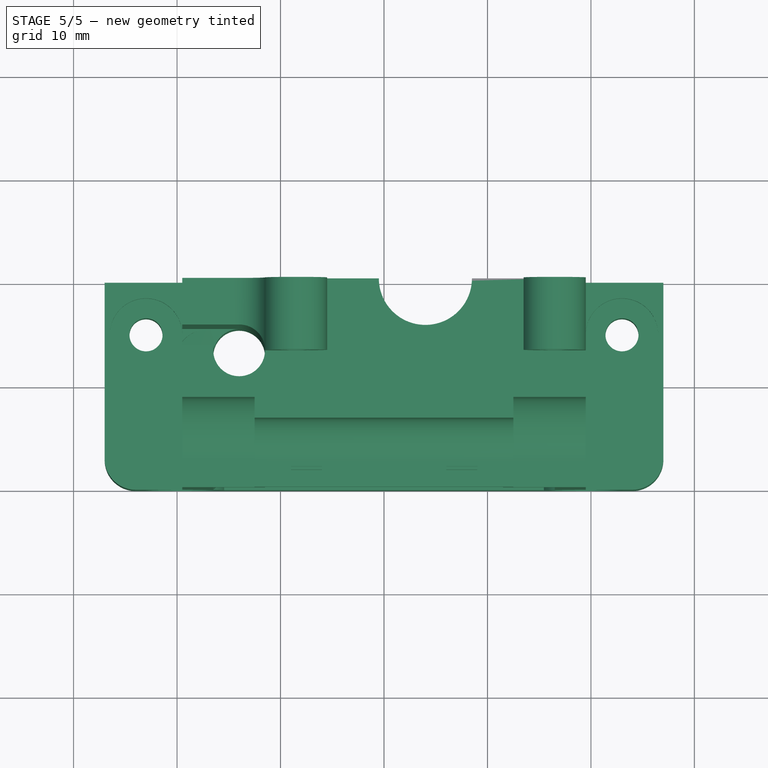
[diagram: stage 5 of 5 — top view after this stage's code; geometry added in this stage tinted green]
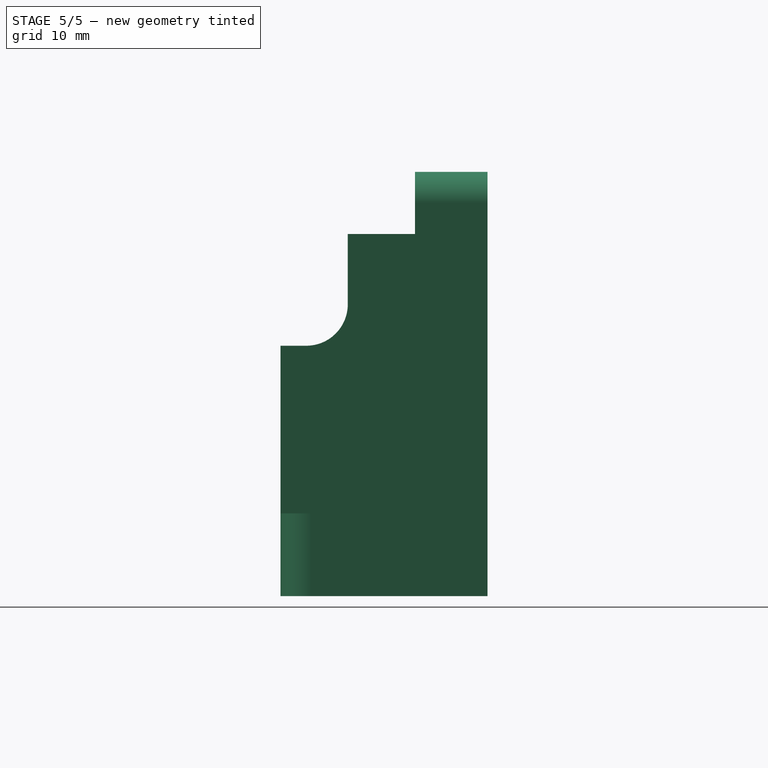
[diagram: stage 5 of 5 — right view after this stage's code; geometry added in this stage tinted green]
FEATURE [Part::Fillet] Fillet001  label="ClipCubeFillet"
  Base = -> Box
  Edges = 1 edges r=3: [Edge7]
FEATURE [Part::Cut] Cut  label="RightClipCut"
  Base = -> Fillet001
  Placement = pos=(18,0,0) rot=(0,0,1;0rad)
  Tool = -> Fusion
FEATURE [Part::Mirroring] Part__Mirroring  label="LeftClipCut"
  Base = (0,0,0)
  Normal = (1,0,0)
  Source = -> Cut
FEATURE [Part::MultiFuse] Fusion001  label="CaseFusion1"
  Shapes = -> [Body,Cut,Part__Mirroring,Body001,Cylinder012,Cylinder013]
FEATURE [Part::Cut] Cut001  label="CaseCuts1"
  Base = -> Fusion001
  Tool = -> Fusion002
FEATURE [Part::Cut] Cut002  label="CaseCuts2"
  Base = -> Cut001
  Tool = -> Fusion003
FEATURE [Part::Mirroring] Part__Mirroring001  label="CaseCuts2_Mirror"
  Base = (0,0,0)
  Normal = (0,1,0)
  Source = -> Cut002
FEATURE [Part::FeaturePython] refine  label="CaseCuts2_Mirror_Refined"  # WARN: FeaturePython — macro-defined, semantics opaque (R4)
  Base = -> Part__Mirroring001
FEATURE [App::Part] Part  label="ClippingBasePart"
  Group = -> [Body,Cylinder,Box,Cut,Part__Mirroring,Cylinder003,Cylinder005,Cylinder007,Fillet001,Cylinder008,Fusion,Body001,Body002,Box001,Cylinder009,Box002,Fillet002,Fusion001,Fusion002,Cut001,Box003,Box004,Fusion003,Cut002,Part__Mirroring001,refine,Cylinder010,Cylinder011,Cylinder012,Cylinder013]
  License = CC BY 3.0
  LicenseURL = http://creativecommons.org/licenses/by/3.0/
  Origin = -> Origin
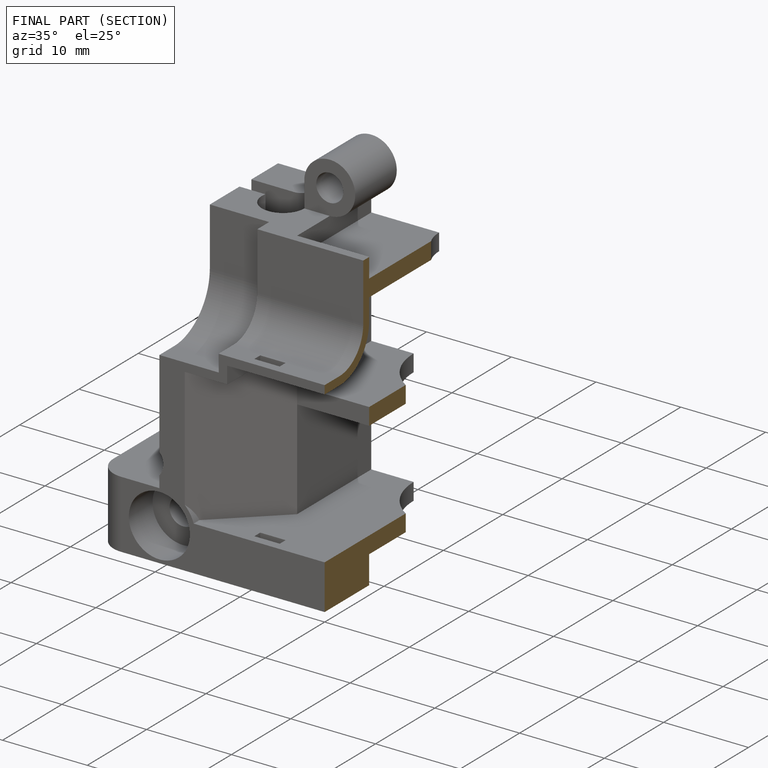
[diagram: finished part — half-section view (interior)]
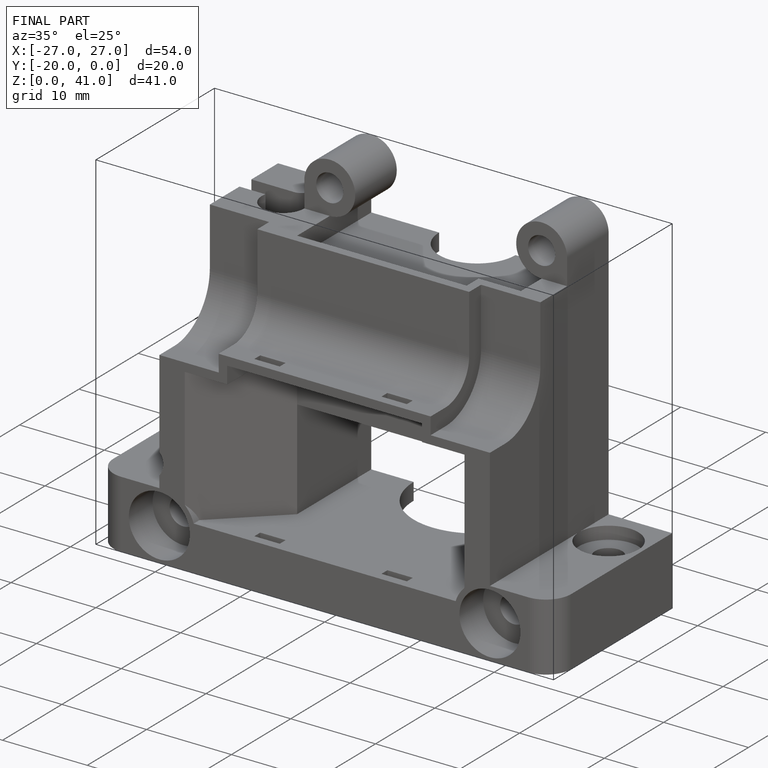
[diagram: finished part — iso view with bounding-box wireframe]
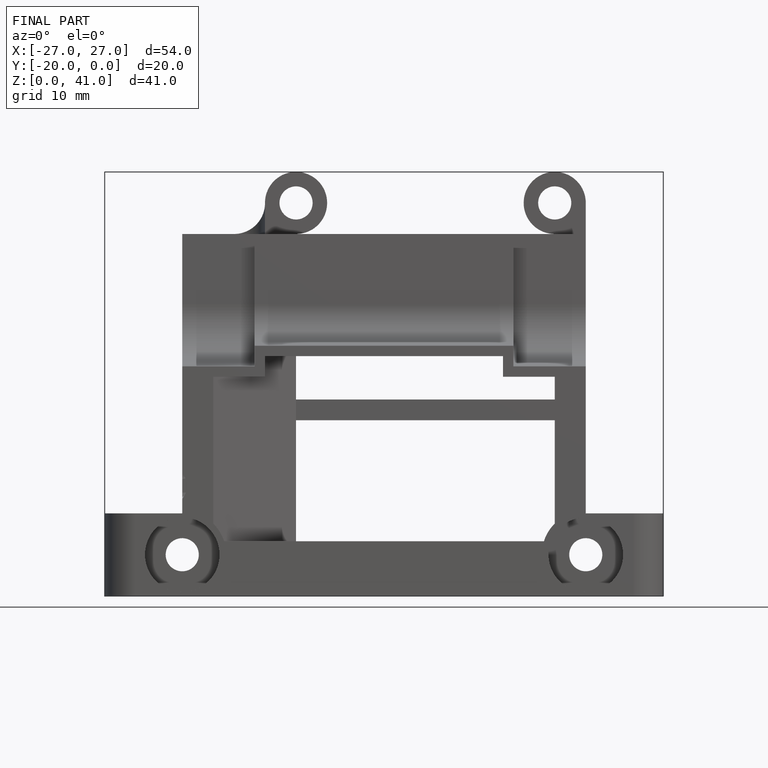
[diagram: finished part — front view with bounding-box wireframe]
